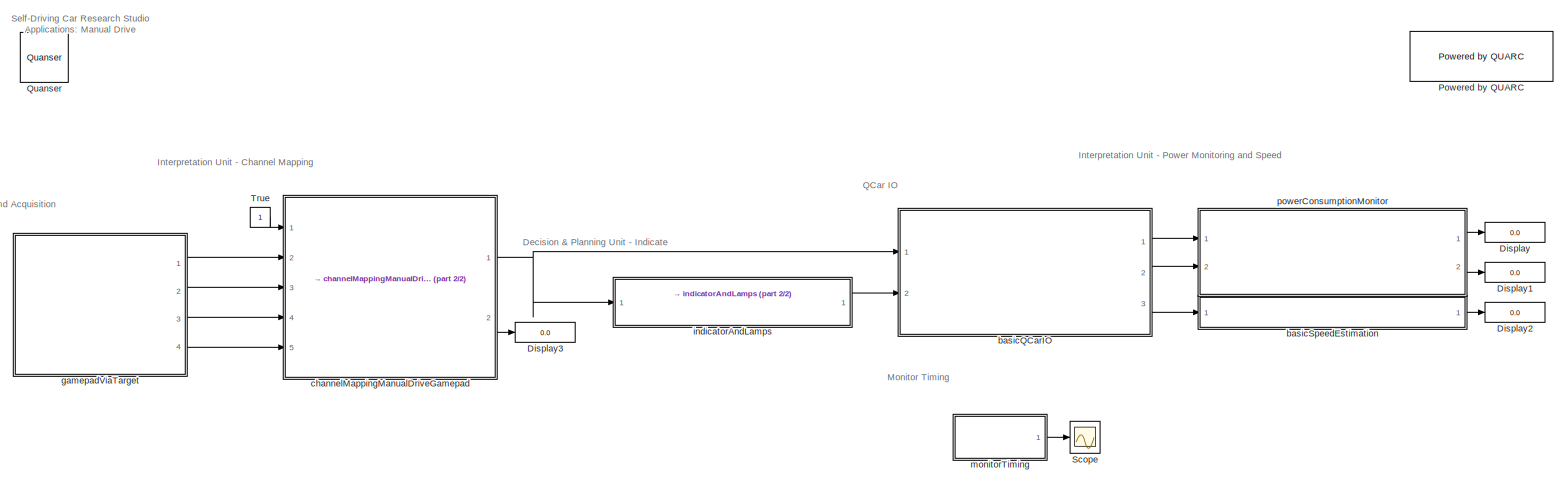
[diagram: root canvas - part 1/2, most of the canvas]
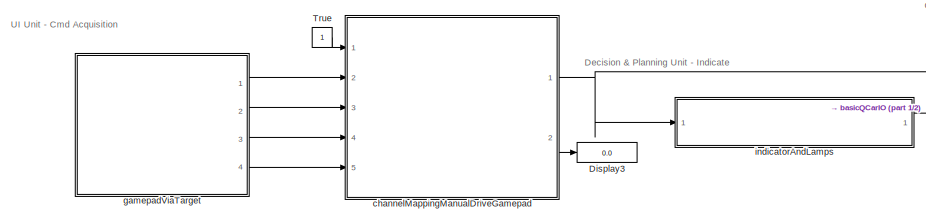
[diagram: root canvas - part 2/2, middle left region]
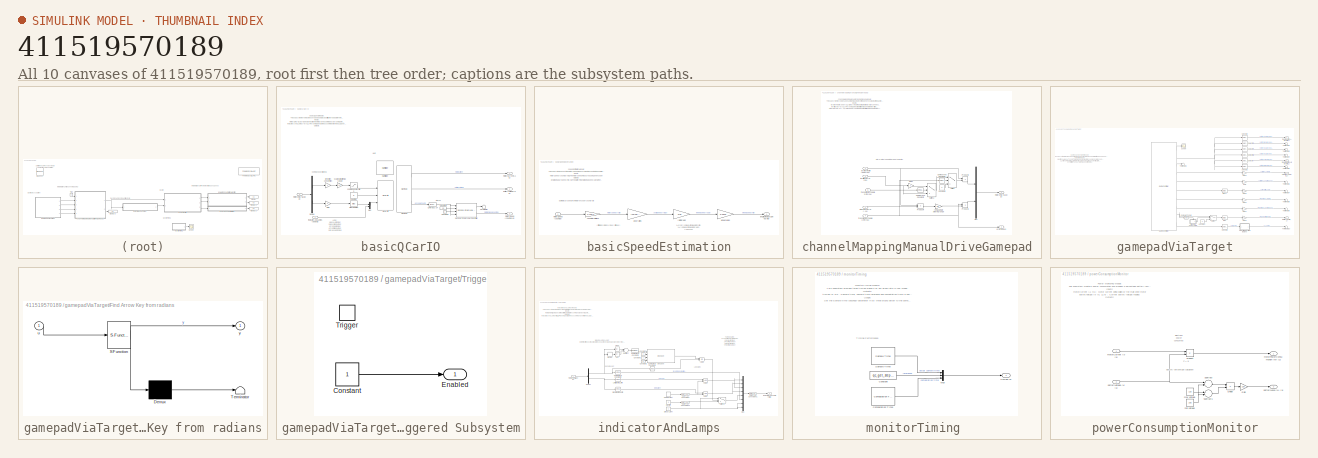
[diagram: thumbnail index - all 10 canvases of the model, root first then tree order]
MODEL slx_411519570189
KIND model
CONFIG AbsTol = auto
CONFIG EnableMultiTasking = on
CONFIG FixedStep = 0.002
CONFIG MaxStep = auto
CONFIG MinStep = auto
CONFIG RelTol = 1e-3
CONFIG SampleTimeConstraint = Unconstrained
CONFIG Solver = ode2
CONFIG SolverName = ode2
CONFIG StartTime = 0.0
CONFIG StopTime = inf
BLOCK [Display] Display
  Decimation = 0.5/qc_get_step_size
  Ports = [1]
BLOCK [Display] Display1
  Decimation = 0.5/qc_get_step_size
  Ports = [1]
BLOCK [Display] Display2
  Decimation = 0.5/qc_get_step_size
  Ports = [1]
BLOCK [Display] Display3
  Decimation = 0.1/qc_get_step_size
  Ports = [1]
BLOCK [Reference] Powered by QUARC  REF=quarc_library/Logos/Powered by QUARC
  Ports = []
  SourceBlock = quarc_library/Logos/Powered by QUARC
  SourceProductName = QUARC Targets
  SourceType = Powered by QUARC
BLOCK [Reference] Quanser  REF=quarc_library/Logos/Quanser
  Ports = []
  SourceBlock = quarc_library/Logos/Quanser
  SourceProductName = QUARC Targets
  SourceType = Powered by Quanser
BLOCK [Scope] Scope
  Floating = off
  NumInputPorts = 1
  Ports = [1]
  ScopeSpecificationString = Simulink.scopes.TimeScopeBlockCfg('CurrentConfiguration', extmgr.ConfigurationSet(extmgr.Configuration('Core','General UI',true),extmgr.Configuration('Core','Source UI',true),extmgr.Configuration('Sources','WiredSimulink',true),extmgr.Configuration('Visuals','Time Domain',true,'SerializedDisplays',{struct('MinYLimReal','-0.00011','MaxYLimReal','0.00378','YLabelReal','','MinYLimMag','0.00000','MaxY...<+1426ch>
BLOCK [Constant] True
BLOCK [SubSystem] basicQCarIO
  Ports = [2, 3]
  RequestExecContextInheritance = off
BLOCK [Constant] basicQCarIO/Constant1
BLOCK [Constant] basicQCarIO/Constant2
  Value = 25
BLOCK [Demux] basicQCarIO/Demux
  DisplayOption = bar
  Outputs = 2
  Ports = [1, 2]
BLOCK [Gain] basicQCarIO/Gain
  Gain = -1
  OutDataTypeStr = Inherit: Inherit via internal rule
  ParamDataTypeStr = Inherit: Inherit via internal rule
  SaturateOnIntegerOverflow = off
BLOCK [Reference] basicQCarIO/HIL Initialize  REF=quarc_library/Data Acquisition/Generic/Configuration/HIL Initialize
  AttributesFormatString = %<object_name> (%<board_type>-%<board_number>)
  Ports = []
  SourceBlock = quarc_library/Data Acquisition/Generic/Configuration/HIL Initialize
  SourceProductName = QUARC Targets
  SourceType = HIL Initialize
  UserDataPersistent = on
BLOCK [Reference] basicQCarIO/HIL Read  REF=quarc_library/Data Acquisition/Generic/Immediate I//O/HIL Read
  AttributesFormatString = (%<object_name>)
  Ports = [0, 3]
  SourceBlock = quarc_library/Data Acquisition/Generic/Immediate I//O/HIL Read
  SourceProductName = QUARC Targets
  SourceType = HIL Read
  UserDataPersistent = on
BLOCK [Reference] basicQCarIO/HIL Write  REF=quarc_library/Data Acquisition/Generic/Immediate I//O/HIL Write
  AttributesFormatString = (%<object_name>)
  Ports = [3]
  SourceBlock = quarc_library/Data Acquisition/Generic/Immediate I//O/HIL Write
  SourceProductName = QUARC Targets
  SourceType = HIL Write
  UserDataPersistent = on
BLOCK [Mux] basicQCarIO/Mux
  DisplayOption = bar
  Inputs = 2
  Ports = [2, 1]
BLOCK [Reference] basicQCarIO/Second-Order Low-Pass Filter  REF=quarc_library/Continuous/Second-Order
Low-Pass Filter
  Ports = [4, 2]
  SourceBlock = quarc_library/Continuous/Second-Order\nLow-Pass Filter
  SourceProductName = QUARC Targets
  SourceType = Second-Order Low-Pass Filter
BLOCK [Bias] basicQCarIO/Steering Bias
  Bias = 0.0
  SaturateOnIntegerOverflow = off
BLOCK [Terminator] basicQCarIO/Terminator
BLOCK [Reference] basicQCarIO/Unwrap 2^24  REF=quarc_library/Discontinuities/Inverse
Modulus
  Ports = [1, 1]
  SourceBlock = quarc_library/Discontinuities/Inverse\nModulus
  SourceProductName = QUARC Targets
  SourceType = Inverse Modulus
BLOCK [Outport] basicQCarIO/batteryVoltage (V) [1]
  IconDisplay = Port number
  Port = 2
BLOCK [Constant] basicQCarIO/coast ON
  Value = 0
BLOCK [Saturate] basicQCarIO/command saturation
  InputPortMap = u0
  LowerLimit = -0.20
  Ports = [1, 1]
  UpperLimit = 0.20
BLOCK [Gain] basicQCarIO/direction convention
  Gain = -1
  OutDataTypeStr = Inherit: Inherit via internal rule
  ParamDataTypeStr = Inherit: Inherit via internal rule
  SaturateOnIntegerOverflow = off
BLOCK [Inport] basicQCarIO/indicatorAndLamps (bool) [8]
  IconDisplay = Port number
  Port = 2
BLOCK [Inport] basicQCarIO/motorCmd (%, rad) [2]
  IconDisplay = Port number
BLOCK [Outport] basicQCarIO/motorCurrent (A) [1]
  IconDisplay = Port number
BLOCK [Outport] basicQCarIO/motorSpeed (counts//s) [1]
  IconDisplay = Port number
  Port = 3
BLOCK [Gain] basicQCarIO/scale output to max range
  Gain = 0.2
  OutDataTypeStr = Inherit: Inherit via internal rule
  ParamDataTypeStr = Inherit: Inherit via internal rule
  SaturateOnIntegerOverflow = off
BLOCK [SubSystem] basicSpeedEstimation
  Ports = [1, 1]
  RequestExecContextInheritance = off
BLOCK [Gain] basicSpeedEstimation/counts to rotations
  Gain = 1/720/4
  OutDataTypeStr = Inherit: Inherit via internal rule
  ParamDataTypeStr = Inherit: Inherit via internal rule
  SaturateOnIntegerOverflow = off
BLOCK [Gain] basicSpeedEstimation/gear ratios
  Gain = (13*19)/(70*37)
  OutDataTypeStr = Inherit: Inherit via internal rule
  ParamDataTypeStr = Inherit: Inherit via internal rule
  SaturateOnIntegerOverflow = off
BLOCK [Outport] basicSpeedEstimation/longitudinalCarSpeed (m//s)
  IconDisplay = Port number
BLOCK [Inport] basicSpeedEstimation/motorSpeed (counts//s)
  IconDisplay = Port number
BLOCK [Gain] basicSpeedEstimation/rot//s to rad//s
  Gain = 2*pi
  OutDataTypeStr = Inherit: Inherit via internal rule
  ParamDataTypeStr = Inherit: Inherit via internal rule
  SaturateOnIntegerOverflow = off
BLOCK [Gain] basicSpeedEstimation/wheel radius
  Gain = 0.0342
  OutDataTypeStr = Inherit: Inherit via internal rule
  ParamDataTypeStr = Inherit: Inherit via internal rule
  SaturateOnIntegerOverflow = off
BLOCK [SubSystem] channelMappingManualDriveGamepad
  Ports = [5, 2]
  RequestExecContextInheritance = off
BLOCK [Gain] channelMappingManualDriveGamepad/ remapping to steering range 
  Gain = 0.5
  OutDataTypeStr = Inherit: Inherit via internal rule
  ParamDataTypeStr = Inherit: Inherit via internal rule
  SaturateOnIntegerOverflow = off
BLOCK [Reference] channelMappingManualDriveGamepad/Compare To Constant1  REF=simulink/Logic and Bit
Operations/Compare
To Constant
  Ports = [1, 1]
  SourceBlock = simulink/Logic and Bit\nOperations/Compare\nTo Constant
  SourceProductBaseCode = SL
  SourceType = Compare To Constant
BLOCK [Reference] channelMappingManualDriveGamepad/Compare To Constant2  REF=simulink/Logic and Bit
Operations/Compare
To Constant
  Ports = [1, 1]
  SourceBlock = simulink/Logic and Bit\nOperations/Compare\nTo Constant
  SourceProductBaseCode = SL
  SourceType = Compare To Constant
BLOCK [Constant] channelMappingManualDriveGamepad/Constant2
  Value = 0
BLOCK [Gain] channelMappingManualDriveGamepad/Gain1
  Gain = -1
  OutDataTypeStr = Inherit: Inherit via internal rule
  ParamDataTypeStr = Inherit: Inherit via internal rule
  SaturateOnIntegerOverflow = off
BLOCK [Mux] channelMappingManualDriveGamepad/Mux
  DisplayOption = bar
  Inputs = 2
  Ports = [2, 1]
BLOCK [Product] channelMappingManualDriveGamepad/Product1
  InputSameDT = off
  OutDataTypeStr = Inherit: Inherit via internal rule
  Ports = [2, 1]
  RndMeth = Floor
  SaturateOnIntegerOverflow = off
BLOCK [Product] channelMappingManualDriveGamepad/Product3
  InputSameDT = off
  OutDataTypeStr = Inherit: Inherit via internal rule
  Ports = [2, 1]
  RndMeth = Floor
  SaturateOnIntegerOverflow = off
BLOCK [Product] channelMappingManualDriveGamepad/Product4
  InputSameDT = off
  OutDataTypeStr = Inherit: Inherit via internal rule
  Ports = [2, 1]
  RndMeth = Floor
  SaturateOnIntegerOverflow = off
BLOCK [Switch] channelMappingManualDriveGamepad/Switch
  Criteria = u2 > Threshold
  InputSameDT = off
  SaturateOnIntegerOverflow = off
  Threshold = 0.5
BLOCK [Switch] channelMappingManualDriveGamepad/Switch1
  Criteria = u2 > Threshold
  InputSameDT = off
  SaturateOnIntegerOverflow = off
  Threshold = 0.5
BLOCK [Outport] channelMappingManualDriveGamepad/arm (bool) [1]
  IconDisplay = Port number
  Port = 2
BLOCK [Inport] channelMappingManualDriveGamepad/joystickHealth (bool) {0,1}
  IconDisplay = Port number
BLOCK [Outport] channelMappingManualDriveGamepad/motorCmd (%, rad) [2]
  IconDisplay = Port number
BLOCK [Inport] channelMappingManualDriveGamepad/steeringAxis (%) {-1,1}
  IconDisplay = Port number
  Port = 2
BLOCK [Inport] channelMappingManualDriveGamepad/throttleAxis (%) {0,1}
  IconDisplay = Port number
  Port = 3
BLOCK [Inport] channelMappingManualDriveGamepad/transmissionToggle1 (int) {0,1}
  IconDisplay = Port number
  Port = 4
BLOCK [Inport] channelMappingManualDriveGamepad/transmissionToggle2 (int) {0,1}
  IconDisplay = Port number
  Port = 5
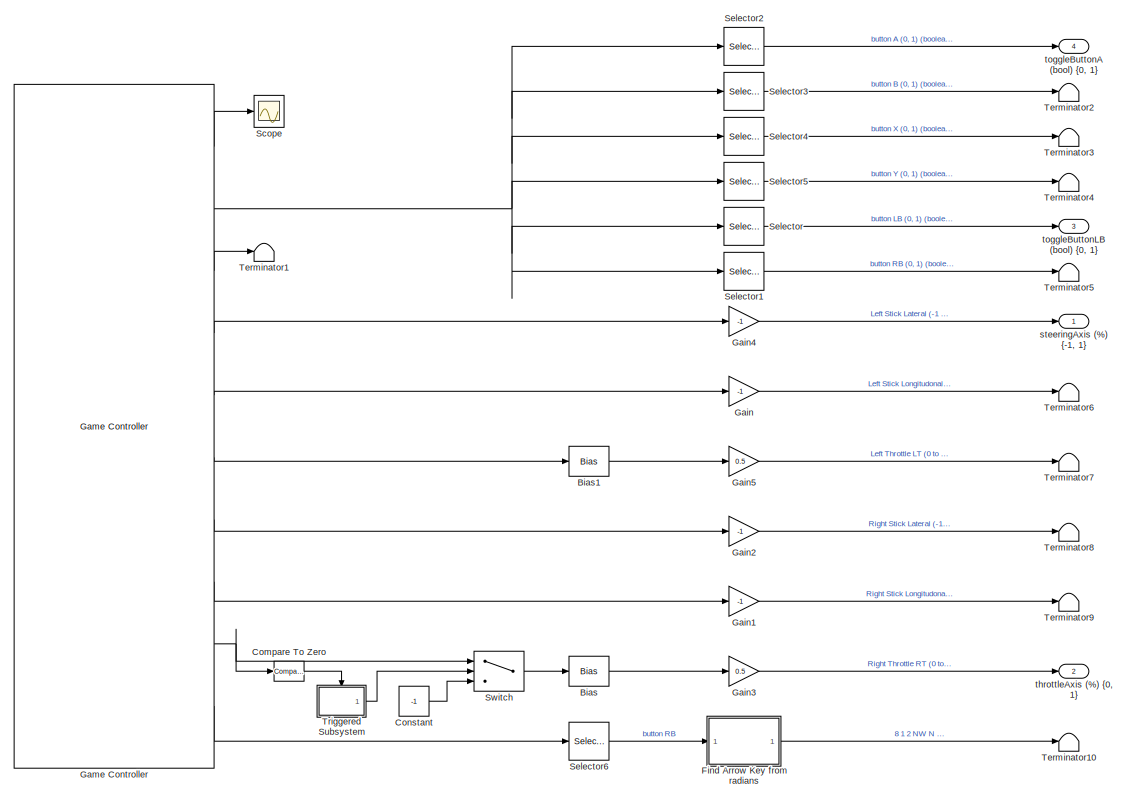
[diagram: gamepadViaTarget - part 1/2, right side, full height]
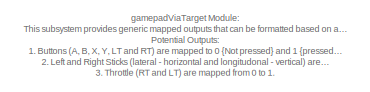
[diagram: gamepadViaTarget - part 2/2, top left region]
BLOCK [SubSystem] gamepadViaTarget
  Ports = [0, 4]
  RequestExecContextInheritance = off
BLOCK [Bias] gamepadViaTarget/Bias
  Bias = 1
  SaturateOnIntegerOverflow = off
BLOCK [Bias] gamepadViaTarget/Bias1
  Bias = 1
  SaturateOnIntegerOverflow = off
BLOCK [Reference] gamepadViaTarget/Compare To Zero  REF=simulink/Logic and Bit
Operations/Compare
To Zero
  Ports = [1, 1]
  SourceBlock = simulink/Logic and Bit\nOperations/Compare\nTo Zero
  SourceProductBaseCode = SL
  SourceType = Compare To Zero
BLOCK [Constant] gamepadViaTarget/Constant
  Value = -1
BLOCK [SubSystem] gamepadViaTarget/Find Arrow Key from radians
  ErrorFcn = Stateflow.Translate.translate
  PermitHierarchicalResolution = ExplicitOnly
  Ports = [1, 1]
  RequestExecContextInheritance = off
  SFBlockType = MATLAB Function
  TreatAsAtomicUnit = on
BLOCK [Demux] gamepadViaTarget/Find Arrow Key from radians/ Demux 
  DisplayOption = bar
  Outputs = 1
  Ports = [1, 1]
BLOCK [S-Function] gamepadViaTarget/Find Arrow Key from radians/ SFunction 
  EnableBusSupport = on
  FunctionName = sf_sfun
  PortCounts = [1 2]
  Ports = [1, 2]
  SFcnIsStateOwnerBlock = off
  SFunctionDeploymentMode = off
  Tag = Stateflow S-Function Manual_Drive 2
BLOCK [Terminator] gamepadViaTarget/Find Arrow Key from radians/ Terminator 
BLOCK [Inport] gamepadViaTarget/Find Arrow Key from radians/u
  IconDisplay = Port number
BLOCK [Outport] gamepadViaTarget/Find Arrow Key from radians/y
  IconDisplay = Port number
BLOCK [Gain] gamepadViaTarget/Gain
  Gain = -1
  OutDataTypeStr = Inherit: Inherit via internal rule
  ParamDataTypeStr = Inherit: Inherit via internal rule
  SaturateOnIntegerOverflow = off
BLOCK [Gain] gamepadViaTarget/Gain1
  Gain = -1
  OutDataTypeStr = Inherit: Inherit via internal rule
  ParamDataTypeStr = Inherit: Inherit via internal rule
  SaturateOnIntegerOverflow = off
BLOCK [Gain] gamepadViaTarget/Gain2
  Gain = -1
  OutDataTypeStr = Inherit: Inherit via internal rule
  ParamDataTypeStr = Inherit: Inherit via internal rule
  SaturateOnIntegerOverflow = off
BLOCK [Gain] gamepadViaTarget/Gain3
  Gain = 0.5
  OutDataTypeStr = Inherit: Inherit via internal rule
  ParamDataTypeStr = Inherit: Inherit via internal rule
  SaturateOnIntegerOverflow = off
BLOCK [Gain] gamepadViaTarget/Gain4
  Gain = -1
  OutDataTypeStr = Inherit: Inherit via internal rule
  ParamDataTypeStr = Inherit: Inherit via internal rule
  SaturateOnIntegerOverflow = off
BLOCK [Gain] gamepadViaTarget/Gain5
  Gain = 0.5
  OutDataTypeStr = Inherit: Inherit via internal rule
  ParamDataTypeStr = Inherit: Inherit via internal rule
  SaturateOnIntegerOverflow = off
BLOCK [Reference] gamepadViaTarget/Game Controller  REF=quarc_library/Devices/Peripherals/Target/Game Controller
  Ports = [0, 10]
  SourceBlock = quarc_library/Devices/Peripherals/Target/Game Controller
  SourceProductName = QUARC Targets
  SourceType = Game Controller
BLOCK [Scope] gamepadViaTarget/Scope
  Floating = off
  NumInputPorts = 1
  Ports = [1]
  ScopeSpecificationString = Simulink.scopes.TimeScopeBlockCfg('CurrentConfiguration', extmgr.ConfigurationSet(extmgr.Configuration('Core','General UI',true),extmgr.Configuration('Core','Source UI',true),extmgr.Configuration('Sources','WiredSimulink',true,'DataLoggingVariableName','ScopeData1'),extmgr.Configuration('Visuals','Time Domain',true,'SerializedDisplays',{struct('MinYLimReal','-0.125','MaxYLimReal','1.125','YLabelRe...<+1364ch>
BLOCK [Selector] gamepadViaTarget/Selector
  IndexOptions = Index vector (dialog)
  Indices = [5]
  InputPortWidth = 32
  OutputSizes = 1
  Ports = [1, 1]
BLOCK [Selector] gamepadViaTarget/Selector1
  IndexOptions = Index vector (dialog)
  Indices = [6]
  InputPortWidth = 32
  OutputSizes = 1
  Ports = [1, 1]
BLOCK [Selector] gamepadViaTarget/Selector2
  IndexOptions = Index vector (dialog)
  Indices = [1]
  InputPortWidth = 32
  OutputSizes = 1
  Ports = [1, 1]
BLOCK [Selector] gamepadViaTarget/Selector3
  IndexOptions = Index vector (dialog)
  Indices = [2]
  InputPortWidth = 32
  OutputSizes = 1
  Ports = [1, 1]
BLOCK [Selector] gamepadViaTarget/Selector4
  IndexOptions = Index vector (dialog)
  Indices = [3]
  InputPortWidth = 32
  OutputSizes = 1
  Ports = [1, 1]
BLOCK [Selector] gamepadViaTarget/Selector5
  IndexOptions = Index vector (dialog)
  Indices = [4]
  InputPortWidth = 32
  OutputSizes = 1
  Ports = [1, 1]
BLOCK [Selector] gamepadViaTarget/Selector6
  IndexOptions = Index vector (dialog)
  Indices = [1]
  InputPortWidth = 4
  OutputSizes = 1
  Ports = [1, 1]
BLOCK [Switch] gamepadViaTarget/Switch
  Criteria = u2 > Threshold
  InputSameDT = off
  SaturateOnIntegerOverflow = off
  Threshold = 0.5
BLOCK [Terminator] gamepadViaTarget/Terminator1
BLOCK [Terminator] gamepadViaTarget/Terminator10
BLOCK [Terminator] gamepadViaTarget/Terminator2
BLOCK [Terminator] gamepadViaTarget/Terminator3
BLOCK [Terminator] gamepadViaTarget/Terminator4
BLOCK [Terminator] gamepadViaTarget/Terminator5
BLOCK [Terminator] gamepadViaTarget/Terminator6
BLOCK [Terminator] gamepadViaTarget/Terminator7
BLOCK [Terminator] gamepadViaTarget/Terminator8
BLOCK [Terminator] gamepadViaTarget/Terminator9
BLOCK [SubSystem] gamepadViaTarget/Triggered Subsystem
  Ports = [0, 1, 0, 1]
  RequestExecContextInheritance = off
  TreatAsAtomicUnit = on
BLOCK [Constant] gamepadViaTarget/Triggered Subsystem/Constant
BLOCK [Outport] gamepadViaTarget/Triggered Subsystem/Enabled
  IconDisplay = Port number
  InitialOutput = [0]
  VectorParamsAs1DForOutWhenUnconnected = on
BLOCK [TriggerPort] gamepadViaTarget/Triggered Subsystem/Trigger
  Ports = []
  StatesWhenEnabling = held
  VariantControl = Variant
BLOCK [Outport] gamepadViaTarget/steeringAxis (%) {-1, 1}
  IconDisplay = Port number
BLOCK [Outport] gamepadViaTarget/throttleAxis (%) {0, 1}
  IconDisplay = Port number
  Port = 2
BLOCK [Outport] gamepadViaTarget/toggleButtonA (bool) {0, 1}
  IconDisplay = Port number
  Port = 4
BLOCK [Outport] gamepadViaTarget/toggleButtonLB (bool) {0, 1}
  IconDisplay = Port number
  Port = 3
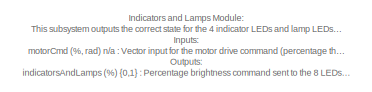
[diagram: indicatorAndLamps - part 1/2, top left region]
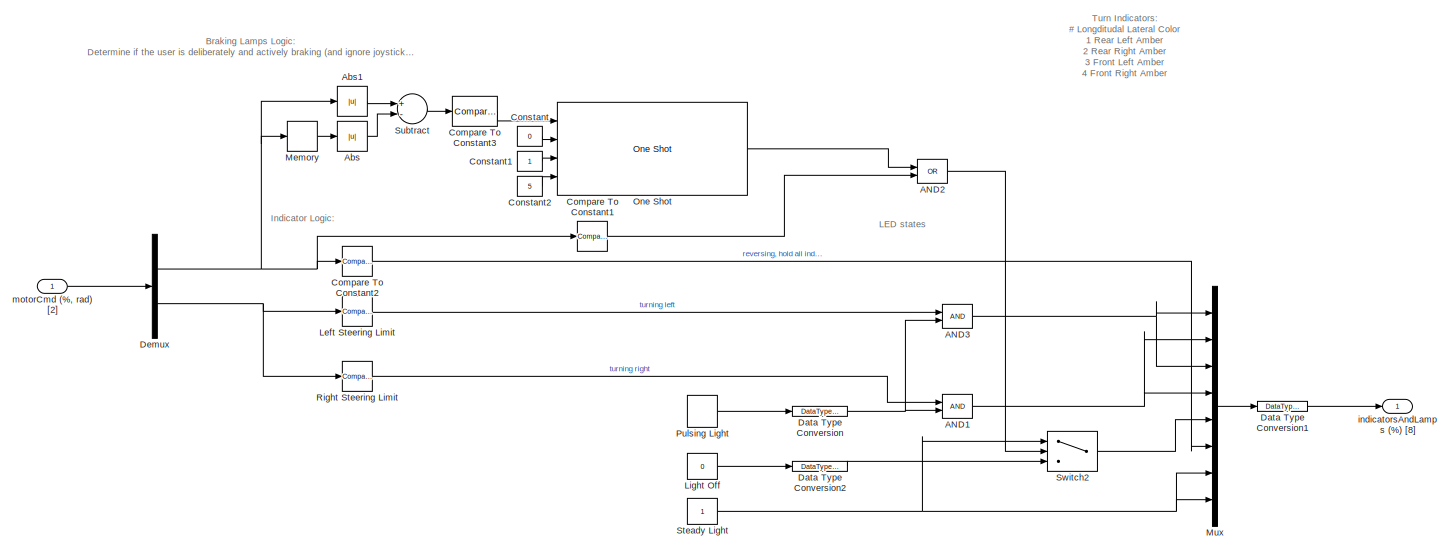
[diagram: indicatorAndLamps - part 2/2, full width, middle band]
BLOCK [SubSystem] indicatorAndLamps
  Ports = [1, 1]
  RequestExecContextInheritance = off
BLOCK [Logic] indicatorAndLamps/AND1
  AllPortsSameDT = off
  IconShape = distinctive
  OutDataTypeStr = boolean
  Ports = [2, 1]
BLOCK [Logic] indicatorAndLamps/AND2
  AllPortsSameDT = off
  IconShape = distinctive
  Operator = OR
  OutDataTypeStr = boolean
  Ports = [2, 1]
BLOCK [Logic] indicatorAndLamps/AND3
  AllPortsSameDT = off
  IconShape = distinctive
  OutDataTypeStr = boolean
  Ports = [2, 1]
BLOCK [Abs] indicatorAndLamps/Abs
  SaturateOnIntegerOverflow = off
BLOCK [Abs] indicatorAndLamps/Abs1
  SaturateOnIntegerOverflow = off
BLOCK [Reference] indicatorAndLamps/Compare To Constant1  REF=simulink/Logic and Bit
Operations/Compare
To Constant
  Ports = [1, 1]
  SourceBlock = simulink/Logic and Bit\nOperations/Compare\nTo Constant
  SourceProductBaseCode = SL
  SourceType = Compare To Constant
BLOCK [Reference] indicatorAndLamps/Compare To Constant2  REF=simulink/Logic and Bit
Operations/Compare
To Constant
  Ports = [1, 1]
  SourceBlock = simulink/Logic and Bit\nOperations/Compare\nTo Constant
  SourceProductBaseCode = SL
  SourceType = Compare To Constant
BLOCK [Reference] indicatorAndLamps/Compare To Constant3  REF=simulink/Logic and Bit
Operations/Compare
To Constant
  Ports = [1, 1]
  SourceBlock = simulink/Logic and Bit\nOperations/Compare\nTo Constant
  SourceProductBaseCode = SL
  SourceType = Compare To Constant
BLOCK [Constant] indicatorAndLamps/Constant
  Value = 0
BLOCK [Constant] indicatorAndLamps/Constant1
BLOCK [Constant] indicatorAndLamps/Constant2
  Value = 5
BLOCK [DataTypeConversion] indicatorAndLamps/Data Type Conversion
  RndMeth = Floor
  SaturateOnIntegerOverflow = off
BLOCK [DataTypeConversion] indicatorAndLamps/Data Type Conversion1
  RndMeth = Floor
  SaturateOnIntegerOverflow = off
BLOCK [DataTypeConversion] indicatorAndLamps/Data Type Conversion2
  RndMeth = Floor
  SaturateOnIntegerOverflow = off
BLOCK [Demux] indicatorAndLamps/Demux
  DisplayOption = bar
  Outputs = 2
  Ports = [1, 2]
BLOCK [Reference] indicatorAndLamps/Left Steering Limit  REF=simulink/Logic and Bit
Operations/Compare
To Constant
  Ports = [1, 1]
  SourceBlock = simulink/Logic and Bit\nOperations/Compare\nTo Constant
  SourceProductBaseCode = SL
  SourceType = Compare To Constant
BLOCK [Constant] indicatorAndLamps/Light Off
  OutDataTypeStr = boolean
  Value = 0
BLOCK [Memory] indicatorAndLamps/Memory
BLOCK [Mux] indicatorAndLamps/Mux
  DisplayOption = bar
  Inputs = 8
  Ports = [8, 1]
BLOCK [Reference] indicatorAndLamps/One Shot  REF=quarc_library/Discontinuities/One Shot
  Ports = [4, 1]
  SourceBlock = quarc_library/Discontinuities/One Shot
  SourceProductName = QUARC Targets
  SourceType = One Shot
BLOCK [DiscretePulseGenerator] indicatorAndLamps/Pulsing Light
  Period = 0.5/qc_get_step_size
  Ports = [0, 1]
  PulseWidth = 0.5/2/qc_get_step_size
  SampleTime = qc_get_step_size
BLOCK [Reference] indicatorAndLamps/Right Steering Limit  REF=simulink/Logic and Bit
Operations/Compare
To Constant
  Ports = [1, 1]
  SourceBlock = simulink/Logic and Bit\nOperations/Compare\nTo Constant
  SourceProductBaseCode = SL
  SourceType = Compare To Constant
BLOCK [Constant] indicatorAndLamps/Steady Light
  OutDataTypeStr = boolean
BLOCK [Sum] indicatorAndLamps/Subtract
  InputSameDT = off
  Inputs = +-
  OutDataTypeStr = Inherit: Inherit via internal rule
  Ports = [2, 1]
  SaturateOnIntegerOverflow = off
BLOCK [Switch] indicatorAndLamps/Switch2
  Criteria = u2 > Threshold
  InputSameDT = off
  SaturateOnIntegerOverflow = off
BLOCK [Outport] indicatorAndLamps/indicatorsAndLamps (%) [8]
  IconDisplay = Port number
BLOCK [Inport] indicatorAndLamps/motorCmd (%, rad) [2]
  IconDisplay = Port number
BLOCK [SubSystem] monitorTiming 
  Ports = [0, 1]
  RequestExecContextInheritance = off
BLOCK [Reference] monitorTiming /Computation Time  REF=quarc_library/Sources/Time/Computation Time
  Ports = [0, 1]
  SourceBlock = quarc_library/Sources/Time/Computation Time
  SourceProductName = QUARC Targets
  SourceType = Computation Time
BLOCK [Constant] monitorTiming /Constant
  Value = qc_get_step_size
BLOCK [Mux] monitorTiming /Mux
  DisplayOption = bar
  Inputs = 3
  Ports = [3, 1]
BLOCK [Reference] monitorTiming /Sample Time  REF=quarc_library/Sources/Time/Sample Time
  Ports = [0, 1]
  Priority = -99
  SourceBlock = quarc_library/Sources/Time/Sample Time
  SourceProductName = QUARC Targets
  SourceType = Sample Time
BLOCK [Outport] monitorTiming /timing (s)
  IconDisplay = Port number
BLOCK [SubSystem] powerConsumptionMonitor
  Ports = [2, 2]
  RequestExecContextInheritance = off
BLOCK [Product] powerConsumptionMonitor/Divide
  InputSameDT = off
  Inputs = */
  OutDataTypeStr = Inherit: Inherit via internal rule
  Ports = [2, 1]
  RndMeth = Floor
  SaturateOnIntegerOverflow = off
BLOCK [Gain] powerConsumptionMonitor/Gain
  Gain = 100
  OutDataTypeStr = Inherit: Inherit via internal rule
  ParamDataTypeStr = Inherit: Inherit via internal rule
  SaturateOnIntegerOverflow = off
BLOCK [Product] powerConsumptionMonitor/Product
  InputSameDT = off
  OutDataTypeStr = Inherit: Inherit via internal rule
  Ports = [2, 1]
  RndMeth = Floor
  SaturateOnIntegerOverflow = off
BLOCK [Sum] powerConsumptionMonitor/Subtract
  InputSameDT = off
  Inputs = +-
  OutDataTypeStr = Inherit: Inherit via internal rule
  Ports = [2, 1]
  SaturateOnIntegerOverflow = off
BLOCK [Sum] powerConsumptionMonitor/Subtract1
  InputSameDT = off
  Inputs = +-
  OutDataTypeStr = Inherit: Inherit via internal rule
  Ports = [2, 1]
  SaturateOnIntegerOverflow = off
BLOCK [Outport] powerConsumptionMonitor/batteryLevel (%) [1]
  IconDisplay = Port number
  Port = 2
BLOCK [Inport] powerConsumptionMonitor/batteryVoltage (V) [1]
  IconDisplay = Port number
  Port = 2
BLOCK [Constant] powerConsumptionMonitor/max voltage
  Value = 12.6
BLOCK [Constant] powerConsumptionMonitor/min voltage
  Value = 10.5
BLOCK [Inport] powerConsumptionMonitor/motorCurrent (A) [1]
  IconDisplay = Port number
BLOCK [Outport] powerConsumptionMonitor/motorPowerConsumption (W) [1]
  IconDisplay = Port number
ANNOTATION (root): Self-Driving Car Research Studio Applications: Manual Drive
ANNOTATION (root): Decision & Planning Unit - Indicate
ANNOTATION (root): Interpretation Unit - Channel Mapping
ANNOTATION (root): Interpretation Unit - Power Monitoring and Speed
ANNOTATION (root): Monitor Timing
ANNOTATION (root): QCar IO
ANNOTATION (root): UI Unit - Cmd Acquisition
ANNOTATION basicQCarIO: basicQCarIO Module: This subsystem provides the core and basic I/O capabilities to read data from and write data to the QCar platform. The HIL Initialize block configures the IO settings, and the HIL Write and Read blocks are used for the actual IO. Inputs: motorCmd (%, rad) n/a : Vector input for the motor drive command (percentage throttle) as well as steering command (in rad) indicatorsAndLamps...<+373ch>
ANNOTATION basicQCarIO: LEDs: 1. Back Left Amber 2. Back Right Amber 3. Front Left Amber 4. Front Right Amber 5. Brake Lights Red 6. Reverse White 7. Left Headlamps White 8. Right Headlamps White
ANNOTATION basicQCarIO: Command Conditioning
ANNOTATION basicQCarIO: Filtering
ANNOTATION basicQCarIO: HIL I/O
ANNOTATION basicSpeedEstimation: (Diff. pinion*pinion)/(Spur*Diff. spur)
ANNOTATION basicSpeedEstimation: speedEstimation Module: This subsystem converts the motor speed measurements in counts/s to a useful longitudinal car speed in m/s. Inputs: motorSpeed (counts/s) n/a : Drive motor speed measured using an encoder Outputs: longitudinalCarSpeed (m/s) n/a : The platform's longitudinal speed (along the front-rear axis direction)
ANNOTATION basicSpeedEstimation: Estimate car speed from motor encoder counts rate
ANNOTATION basicSpeedEstimation: v = 2*pi*r * omega (if omega is in rot/s) v = r * omega (if omega is in rad/s) r = 0.0342 m
ANNOTATION channelMappingManualDriveGamepad: channelMappingManualDriveGamepad Module: This subsystem provides an example mapping from the generic outputs of the gamepad blocks to those for a specific application, in this case - Manual Drive. The user can command motor commands for driving and steering the QCar platform manually. The Transmission Toggles allows you to set Reverse or Drive transmission states, as well as switch between Manual ...<+1169ch>
ANNOTATION channelMappingManualDriveGamepad: Interpreting Axis Data to Driving Application
ANNOTATION gamepadViaTarget: gamepadViaTarget Module: This subsystem provides generic mapped outputs that can be formatted based on application and usage. Use this module when the joystick USB dongle is connected directly to the target's USB port for applications where the user is following the target platform and will have the joystick remain in the vicinity of the target for better performance. Potential Outputs: 1. Buttons...<+1028ch>
ANNOTATION indicatorAndLamps: Indicators and Lamps Module: This subsystem outputs the correct state for the 4 indicator LEDs and lamp LEDs based on the motor drive and steering commands for the QCar platform. Inputs: motorCmd (%, rad) n/a : Vector input for the motor drive command (percentage throttle) as well as steering command (in rad) Outputs: indicatorsAndLamps (%) {0,1} : Percentage brightness command sent to the 8 LEDs ...<+388ch>
ANNOTATION indicatorAndLamps: Turn Indicators: # Longditudal Lateral Color 1 Rear Left Amber 2 Rear Right Amber 3 Front Left Amber 4 Front Right Amber Lamps: # Longditudal Lateral Color 5 Rear Left Red 6 Rear Right Red 7 Front Left White 8 Front Right White
ANNOTATION indicatorAndLamps: Braking Lamps Logic: Determine if the user is deliberately and actively braking (and ignore joystick jitter and noise)
ANNOTATION indicatorAndLamps: Indicator Logic:
ANNOTATION indicatorAndLamps: LED states
ANNOTATION monitorTiming : monitorTiming Module: This subsystem provides three timing signals for any given rate in your model. Outputs: timing (s) n/a : Sample time, sample time reference and computation time in seconds. Usage: Set the 'Sample time (seconds)' parameter in all three blocks below to the same number. This will provide the actual sample time at each time step, the reference sample time that is being targeted a...<+103ch>
ANNOTATION monitorTiming : Timing Performance
ANNOTATION powerConsumptionMonitor: Power Monitoring Module: This subsystem monitors power consumption and provides a percentage battery remaining indicator. Inputs: motorCurrent (A) n/a : Motor current being pulled by the main drive motor batteryVoltage (V) {0, 12.6} : Current battery voltage reading Outputs: motorPowerConsumption (W) n/a : Current power in Watts being pulled by the main drive motor batteryLevel (%) {0,1} : Percent...<+144ch>
ANNOTATION powerConsumptionMonitor: Battery percentage calculation
ANNOTATION powerConsumptionMonitor: Electrical power consumed
ANNOTATION powerConsumptionMonitor: P = VI
LINE True:1 -> channelMappingManualDriveGamepad:1
LINE basicQCarIO/Constant1:1 -> basicQCarIO/Second-Order Low-Pass Filter:3
LINE basicQCarIO/Constant2:1 -> basicQCarIO/Second-Order Low-Pass Filter:2
LINE basicQCarIO/Demux:1 -> basicQCarIO/direction convention:1
LINE basicQCarIO/Demux:2 -> basicQCarIO/Gain:1
LINE basicQCarIO/Gain:1 -> basicQCarIO/Steering Bias:1
LINE basicQCarIO/HIL Read:1 -> basicQCarIO/motorCurrent (A) [1]:1
LINE basicQCarIO/HIL Read:2 -> basicQCarIO/batteryVoltage (V) [1]:1
LINE basicQCarIO/HIL Read:3 -> basicQCarIO/Unwrap 2^24:1
LINE basicQCarIO/Mux:1 -> basicQCarIO/HIL Write:3
LINE basicQCarIO/Second-Order Low-Pass Filter:1 -> basicQCarIO/Terminator:1
LINE basicQCarIO/Second-Order Low-Pass Filter:2 -> basicQCarIO/motorSpeed (counts//s) [1]:1
LINE basicQCarIO/Steering Bias:1 -> basicQCarIO/Mux:1
NET basicQCarIO/Unwrap 2^24:1 -> basicQCarIO/Second-Order Low-Pass Filter:1, basicQCarIO/Second-Order Low-Pass Filter:4
LINE basicQCarIO/coast ON:1 -> basicQCarIO/HIL Write:2
LINE basicQCarIO/command saturation:1 -> basicQCarIO/HIL Write:1
LINE basicQCarIO/direction convention:1 -> basicQCarIO/scale output to max range:1
LINE basicQCarIO/indicatorAndLamps (bool) [8]:1 -> basicQCarIO/Mux:2
LINE basicQCarIO/motorCmd (%, rad) [2]:1 -> basicQCarIO/Demux:1
LINE basicQCarIO/scale output to max range:1 -> basicQCarIO/command saturation:1
LINE basicQCarIO:1 -> powerConsumptionMonitor:1
LINE basicQCarIO:2 -> powerConsumptionMonitor:2
LINE basicQCarIO:3 -> basicSpeedEstimation:1
LINE basicSpeedEstimation/counts to rotations:1 -> basicSpeedEstimation/gear ratios:1
LINE basicSpeedEstimation/gear ratios:1 -> basicSpeedEstimation/rot//s to rad//s:1
LINE basicSpeedEstimation/motorSpeed (counts//s):1 -> basicSpeedEstimation/counts to rotations:1
LINE basicSpeedEstimation/rot//s to rad//s:1 -> basicSpeedEstimation/wheel radius:1
LINE basicSpeedEstimation/wheel radius:1 -> basicSpeedEstimation/longitudinalCarSpeed (m//s):1
LINE basicSpeedEstimation:1 -> Display2:1
LINE channelMappingManualDriveGamepad/ remapping to steering range :1 -> channelMappingManualDriveGamepad/Product1:2
LINE channelMappingManualDriveGamepad/Compare To Constant1:1 -> channelMappingManualDriveGamepad/Switch:2
LINE channelMappingManualDriveGamepad/Compare To Constant2:1 -> channelMappingManualDriveGamepad/Switch1:2
LINE channelMappingManualDriveGamepad/Constant2:1 -> channelMappingManualDriveGamepad/Switch:3
LINE channelMappingManualDriveGamepad/Gain1:1 -> channelMappingManualDriveGamepad/Switch1:1
LINE channelMappingManualDriveGamepad/Mux:1 -> channelMappingManualDriveGamepad/motorCmd (%, rad) [2]:1
LINE channelMappingManualDriveGamepad/Product1:1 -> channelMappingManualDriveGamepad/Mux:2
LINE channelMappingManualDriveGamepad/Product3:1 -> channelMappingManualDriveGamepad/Mux:1
LINE channelMappingManualDriveGamepad/Product4:1 -> channelMappingManualDriveGamepad/ remapping to steering range :1
LINE channelMappingManualDriveGamepad/Switch1:1 -> channelMappingManualDriveGamepad/Switch:1
LINE channelMappingManualDriveGamepad/Switch:1 -> channelMappingManualDriveGamepad/Product3:2
NET channelMappingManualDriveGamepad/joystickHealth (bool) {0,1}:1 -> channelMappingManualDriveGamepad/Product3:1, channelMappingManualDriveGamepad/Product4:1
LINE channelMappingManualDriveGamepad/steeringAxis (%) {-1,1}:1 -> channelMappingManualDriveGamepad/Product4:2
NET channelMappingManualDriveGamepad/throttleAxis (%) {0,1}:1 -> channelMappingManualDriveGamepad/Gain1:1, channelMappingManualDriveGamepad/Switch1:3
NET channelMappingManualDriveGamepad/transmissionToggle1 (int) {0,1}:1 -> channelMappingManualDriveGamepad/Compare To Constant1:1, channelMappingManualDriveGamepad/Product1:1, channelMappingManualDriveGamepad/arm (bool) [1]:1
LINE channelMappingManualDriveGamepad/transmissionToggle2 (int) {0,1}:1 -> channelMappingManualDriveGamepad/Compare To Constant2:1
NET channelMappingManualDriveGamepad:1 -> basicQCarIO:1, indicatorAndLamps:1
LINE channelMappingManualDriveGamepad:2 -> Display3:1
LINE gamepadViaTarget/Bias1:1 -> gamepadViaTarget/Gain5:1
LINE gamepadViaTarget/Bias:1 -> gamepadViaTarget/Gain3:1
LINE gamepadViaTarget/Compare To Zero:1 -> gamepadViaTarget/Triggered Subsystem:trigger
LINE gamepadViaTarget/Constant:1 -> gamepadViaTarget/Switch:3
LINE gamepadViaTarget/Find Arrow Key from radians:1 -> gamepadViaTarget/Terminator10:1
LINE gamepadViaTarget/Gain1:1 -> gamepadViaTarget/Terminator9:1
LINE gamepadViaTarget/Gain2:1 -> gamepadViaTarget/Terminator8:1
LINE gamepadViaTarget/Gain3:1 -> gamepadViaTarget/throttleAxis (%) {0, 1}:1
LINE gamepadViaTarget/Gain4:1 -> gamepadViaTarget/steeringAxis (%) {-1, 1}:1
LINE gamepadViaTarget/Gain5:1 -> gamepadViaTarget/Terminator7:1
LINE gamepadViaTarget/Gain:1 -> gamepadViaTarget/Terminator6:1
LINE gamepadViaTarget/Game Controller:1 -> gamepadViaTarget/Scope:1
LINE gamepadViaTarget/Game Controller:10 -> gamepadViaTarget/Selector6:1
NET gamepadViaTarget/Game Controller:2 -> gamepadViaTarget/Selector1:1, gamepadViaTarget/Selector2:1, gamepadViaTarget/Selector3:1, gamepadViaTarget/Selector4:1, gamepadViaTarget/Selector5:1, gamepadViaTarget/Selector:1
LINE gamepadViaTarget/Game Controller:3 -> gamepadViaTarget/Terminator1:1
LINE gamepadViaTarget/Game Controller:4 -> gamepadViaTarget/Gain4:1
LINE gamepadViaTarget/Game Controller:5 -> gamepadViaTarget/Gain:1
LINE gamepadViaTarget/Game Controller:6 -> gamepadViaTarget/Bias1:1
LINE gamepadViaTarget/Game Controller:7 -> gamepadViaTarget/Gain2:1
LINE gamepadViaTarget/Game Controller:8 -> gamepadViaTarget/Gain1:1
NET gamepadViaTarget/Game Controller:9 -> gamepadViaTarget/Compare To Zero:1, gamepadViaTarget/Switch:1
LINE gamepadViaTarget/Selector1:1 -> gamepadViaTarget/Terminator5:1
LINE gamepadViaTarget/Selector2:1 -> gamepadViaTarget/toggleButtonA (bool) {0, 1}:1
LINE gamepadViaTarget/Selector3:1 -> gamepadViaTarget/Terminator2:1
LINE gamepadViaTarget/Selector4:1 -> gamepadViaTarget/Terminator3:1
LINE gamepadViaTarget/Selector5:1 -> gamepadViaTarget/Terminator4:1
LINE gamepadViaTarget/Selector6:1 -> gamepadViaTarget/Find Arrow Key from radians:1
LINE gamepadViaTarget/Selector:1 -> gamepadViaTarget/toggleButtonLB (bool) {0, 1}:1
LINE gamepadViaTarget/Switch:1 -> gamepadViaTarget/Bias:1
LINE gamepadViaTarget/Triggered Subsystem/Constant:1 -> gamepadViaTarget/Triggered Subsystem/Enabled:1
LINE gamepadViaTarget/Triggered Subsystem:1 -> gamepadViaTarget/Switch:2
LINE gamepadViaTarget:1 -> channelMappingManualDriveGamepad:2
LINE gamepadViaTarget:2 -> channelMappingManualDriveGamepad:3
LINE gamepadViaTarget:3 -> channelMappingManualDriveGamepad:4
LINE gamepadViaTarget:4 -> channelMappingManualDriveGamepad:5
NET indicatorAndLamps/AND1:1 -> indicatorAndLamps/Mux:2, indicatorAndLamps/Mux:4
LINE indicatorAndLamps/AND2:1 -> indicatorAndLamps/Switch2:2
NET indicatorAndLamps/AND3:1 -> indicatorAndLamps/Mux:1, indicatorAndLamps/Mux:3
LINE indicatorAndLamps/Abs1:1 -> indicatorAndLamps/Subtract:1
LINE indicatorAndLamps/Abs:1 -> indicatorAndLamps/Subtract:2
LINE indicatorAndLamps/Compare To Constant1:1 -> indicatorAndLamps/AND2:2
LINE indicatorAndLamps/Compare To Constant2:1 -> indicatorAndLamps/Mux:6
LINE indicatorAndLamps/Compare To Constant3:1 -> indicatorAndLamps/One Shot:1
LINE indicatorAndLamps/Constant1:1 -> indicatorAndLamps/One Shot:3
LINE indicatorAndLamps/Constant2:1 -> indicatorAndLamps/One Shot:4
LINE indicatorAndLamps/Constant:1 -> indicatorAndLamps/One Shot:2
LINE indicatorAndLamps/Data Type Conversion1:1 -> indicatorAndLamps/indicatorsAndLamps (%) [8]:1
LINE indicatorAndLamps/Data Type Conversion2:1 -> indicatorAndLamps/Switch2:3
NET indicatorAndLamps/Data Type Conversion:1 -> indicatorAndLamps/AND1:2, indicatorAndLamps/AND3:2
NET indicatorAndLamps/Demux:1 -> indicatorAndLamps/Abs1:1, indicatorAndLamps/Compare To Constant1:1, indicatorAndLamps/Compare To Constant2:1, indicatorAndLamps/Memory:1
NET indicatorAndLamps/Demux:2 -> indicatorAndLamps/Left Steering Limit:1, indicatorAndLamps/Right Steering Limit:1
LINE indicatorAndLamps/Left Steering Limit:1 -> indicatorAndLamps/AND3:1
LINE indicatorAndLamps/Light Off:1 -> indicatorAndLamps/Data Type Conversion2:1
LINE indicatorAndLamps/Memory:1 -> indicatorAndLamps/Abs:1
LINE indicatorAndLamps/Mux:1 -> indicatorAndLamps/Data Type Conversion1:1
LINE indicatorAndLamps/One Shot:1 -> indicatorAndLamps/AND2:1
LINE indicatorAndLamps/Pulsing Light:1 -> indicatorAndLamps/Data Type Conversion:1
LINE indicatorAndLamps/Right Steering Limit:1 -> indicatorAndLamps/AND1:1
NET indicatorAndLamps/Steady Light:1 -> indicatorAndLamps/Mux:7, indicatorAndLamps/Mux:8, indicatorAndLamps/Switch2:1
LINE indicatorAndLamps/Subtract:1 -> indicatorAndLamps/Compare To Constant3:1
LINE indicatorAndLamps/Switch2:1 -> indicatorAndLamps/Mux:5
LINE indicatorAndLamps/motorCmd (%, rad) [2]:1 -> indicatorAndLamps/Demux:1
LINE indicatorAndLamps:1 -> basicQCarIO:2
LINE monitorTiming /Computation Time:1 -> monitorTiming /Mux:3
LINE monitorTiming /Constant:1 -> monitorTiming /Mux:2
LINE monitorTiming /Mux:1 -> monitorTiming /timing (s):1
LINE monitorTiming /Sample Time:1 -> monitorTiming /Mux:1
LINE monitorTiming :1 -> Scope:1
LINE powerConsumptionMonitor/Divide:1 -> powerConsumptionMonitor/Gain:1
LINE powerConsumptionMonitor/Gain:1 -> powerConsumptionMonitor/batteryLevel (%) [1]:1
LINE powerConsumptionMonitor/Product:1 -> powerConsumptionMonitor/motorPowerConsumption (W) [1]:1
LINE powerConsumptionMonitor/Subtract1:1 -> powerConsumptionMonitor/Divide:2
LINE powerConsumptionMonitor/Subtract:1 -> powerConsumptionMonitor/Divide:1
NET powerConsumptionMonitor/batteryVoltage (V) [1]:1 -> powerConsumptionMonitor/Product:2, powerConsumptionMonitor/Subtract:1
LINE powerConsumptionMonitor/max voltage:1 -> powerConsumptionMonitor/Subtract1:1
NET powerConsumptionMonitor/min voltage:1 -> powerConsumptionMonitor/Subtract1:2, powerConsumptionMonitor/Subtract:2
LINE powerConsumptionMonitor/motorCurrent (A) [1]:1 -> powerConsumptionMonitor/Product:1
LINE powerConsumptionMonitor:1 -> Display:1
LINE powerConsumptionMonitor:2 -> Display1:1
note: NET lines group one-source signal fan-out (src -> all destinations, sorted); 1:1 wires keep LINE
CHART gamepadViaTarget/Find Arrow Key 
from radians states=1 transitions=1
  STATE_LABEL 'eML_blk_kernel()'
  STATE_LABEL 'SCRIPT:\nfunction y = fcn(u)\n\n% the input signal gives the positon of the arrow keys pressed on the gamepad\n% in radians circulating clockwise. Thus, up arrow alone is 0, right would be\n% pi/2, and both up and right arrows pressed simultaneously is pi/4.\n% \n% Given the input signal, convert to degrees for ease, then subtract the \n% vector 45*[0 1 2 3 4 5 6 7] to find smallest error corresponding to...<+111ch>'
